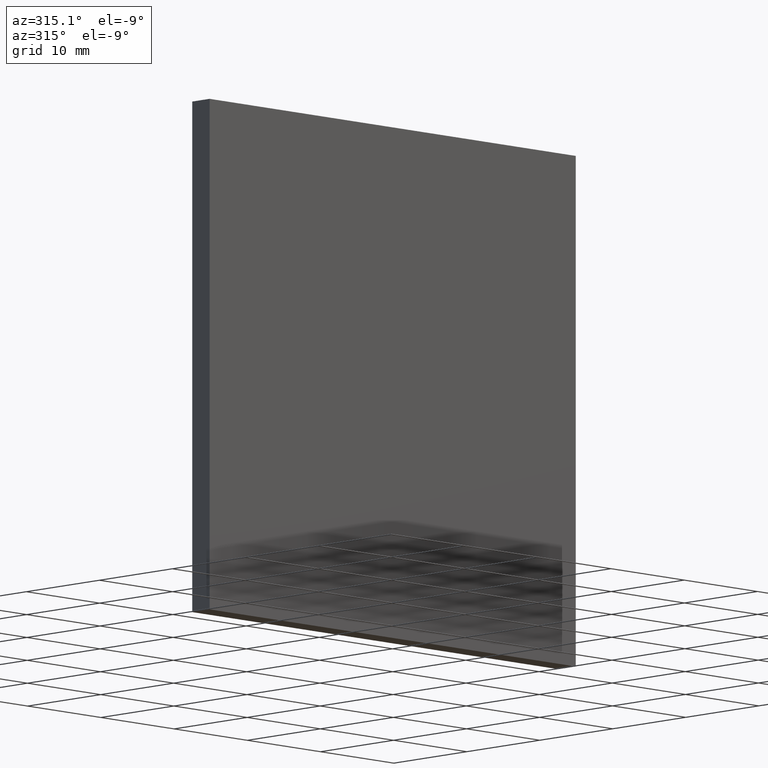
[diagram: clean part render]
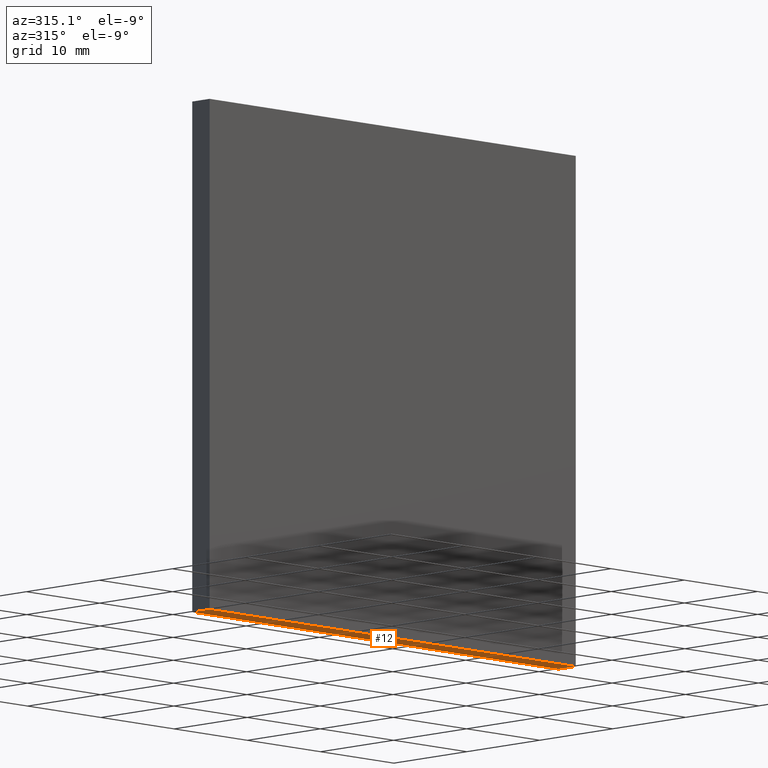
[diagram: same view with one face highlighted and labeled with its STEP entity id]
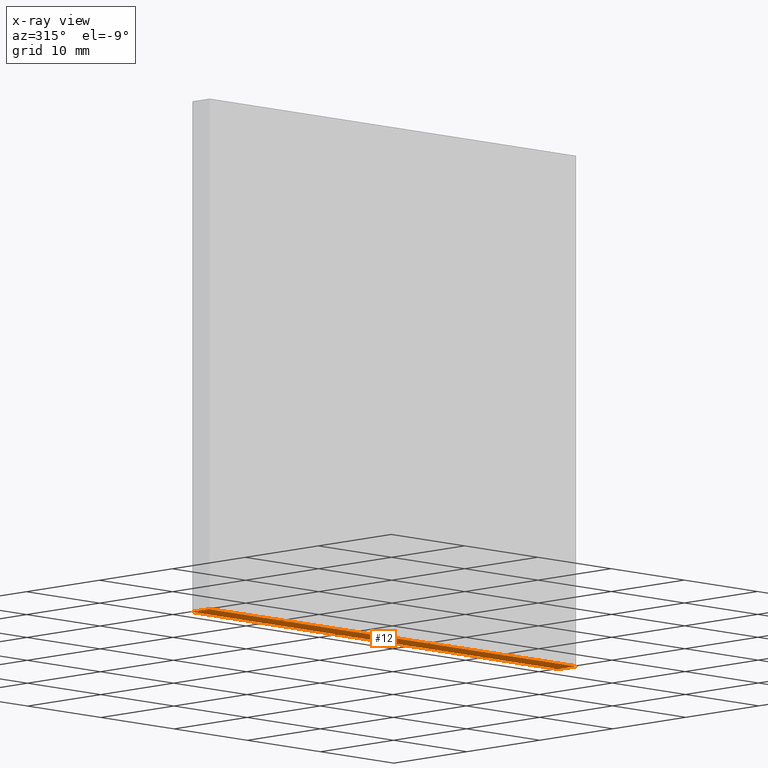
[diagram: x-ray of the same camera — body ghosted, the highlighted face saturated]
A machine part, auxiliary view. The second image highlights one B-rep face of the part: STEP entity #12.
The next image is the same camera in x-ray: the body ghosted, the highlighted face saturated — about 0% of this face is hidden behind the body in this view.
In plain terms, the highlighted planar face has unit normal (0, 0, 1).
Its self-contained STEP definition (entity closure, byte-faithful):
#1 = LINE ( 'NONE', #95, #177 ) ;
#4 = CARTESIAN_POINT ( 'NONE',  ( 25.00000000000000000, 2.370000000000000100, -25.00000000000000400 ) ) ;
#12 = ADVANCED_FACE ( 'NONE', ( #17 ), #179, .F. ) ;
#16 = EDGE_CURVE ( 'NONE', #195, #107, #1, .T. ) ;
#17 = FACE_OUTER_BOUND ( 'NONE', #79, .T. ) ;
#18 = ORIENTED_EDGE ( 'NONE', *, *, #200, .T. ) ;
#20 = DIRECTION ( 'NONE',  ( -0.0000000000000000000, -1.000000000000000000, -0.0000000000000000000 ) ) ;
#39 = VERTEX_POINT ( 'NONE', #152 ) ;
#46 = EDGE_CURVE ( 'NONE', #175, #39, #87, .T. ) ;
#49 = DIRECTION ( 'NONE',  ( -1.000000000000000000, -0.0000000000000000000, -0.0000000000000000000 ) ) ;
#55 = VECTOR ( 'NONE', #192, 1000.000000000000000 ) ;
#57 = VECTOR ( 'NONE', #20, 1000.000000000000000 ) ;
#61 = CARTESIAN_POINT ( 'NONE',  ( -25.00000000000000000, 0.0000000000000000000, -25.00000000000000400 ) ) ;
#69 = DIRECTION ( 'NONE',  ( 0.0000000000000000000, 0.0000000000000000000, 1.000000000000000000 ) ) ;
#70 = DIRECTION ( 'NONE',  ( -1.000000000000000000, -0.0000000000000000000, -0.0000000000000000000 ) ) ;
#79 = EDGE_LOOP ( 'NONE', ( #157, #202, #86, #18 ) ) ;
#86 = ORIENTED_EDGE ( 'NONE', *, *, #46, .F. ) ;
#87 = LINE ( 'NONE', #117, #159 ) ;
#95 = CARTESIAN_POINT ( 'NONE',  ( -25.00000000000000000, 0.0000000000000000000, -25.00000000000000400 ) ) ;
#104 = AXIS2_PLACEMENT_3D ( 'NONE', #119, #69, #178 ) ;
#107 = VERTEX_POINT ( 'NONE', #61 ) ;
#117 = CARTESIAN_POINT ( 'NONE',  ( -25.00000000000000000, 2.370000000000000100, -25.00000000000000400 ) ) ;
#119 = CARTESIAN_POINT ( 'NONE',  ( -25.00000000000000000, 2.370000000000000100, -25.00000000000000400 ) ) ;
#132 = CARTESIAN_POINT ( 'NONE',  ( -25.00000000000000000, 2.370000000000000100, -25.00000000000000400 ) ) ;
#138 = LINE ( 'NONE', #4, #55 ) ;
#140 = LINE ( 'NONE', #132, #57 ) ;
#143 = EDGE_CURVE ( 'NONE', #39, #107, #140, .T. ) ;
#146 = CARTESIAN_POINT ( 'NONE',  ( 25.00000000000000000, 2.370000000000000100, -25.00000000000000400 ) ) ;
#152 = CARTESIAN_POINT ( 'NONE',  ( -25.00000000000000000, 2.370000000000000100, -25.00000000000000400 ) ) ;
#157 = ORIENTED_EDGE ( 'NONE', *, *, #16, .T. ) ;
#159 = VECTOR ( 'NONE', #49, 1000.000000000000000 ) ;
#162 = CARTESIAN_POINT ( 'NONE',  ( 25.00000000000000000, 0.0000000000000000000, -25.00000000000000400 ) ) ;
#175 = VERTEX_POINT ( 'NONE', #146 ) ;
#177 = VECTOR ( 'NONE', #70, 1000.000000000000000 ) ;
#178 = DIRECTION ( 'NONE',  ( 1.000000000000000000, 0.0000000000000000000, -0.0000000000000000000 ) ) ;
#179 = PLANE ( 'NONE',  #104 ) ;
#192 = DIRECTION ( 'NONE',  ( -0.0000000000000000000, -1.000000000000000000, -0.0000000000000000000 ) ) ;
#195 = VERTEX_POINT ( 'NONE', #162 ) ;
#200 = EDGE_CURVE ( 'NONE', #175, #195, #138, .T. ) ;
#202 = ORIENTED_EDGE ( 'NONE', *, *, #143, .F. ) ;